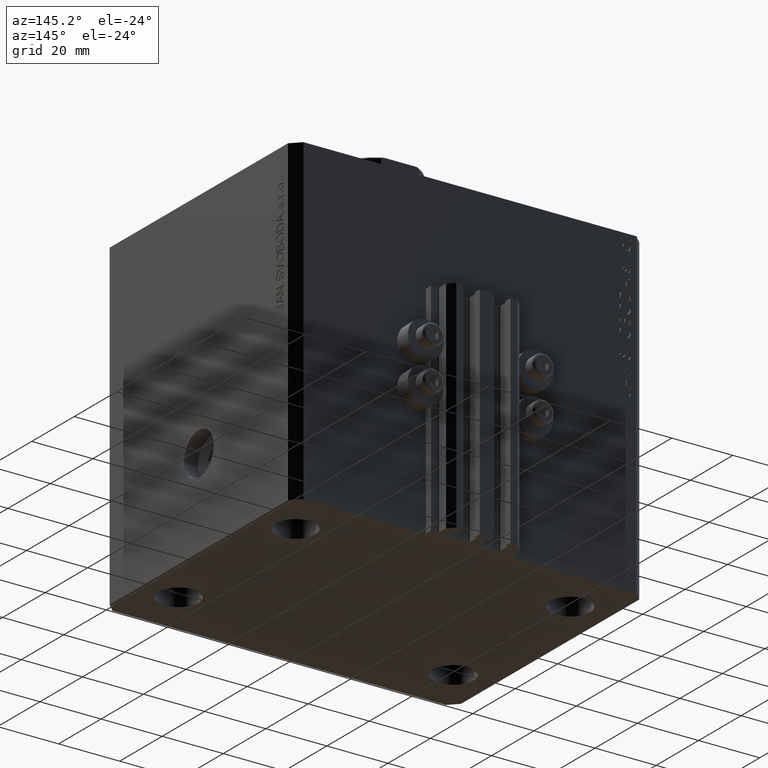
[diagram: clean part render]
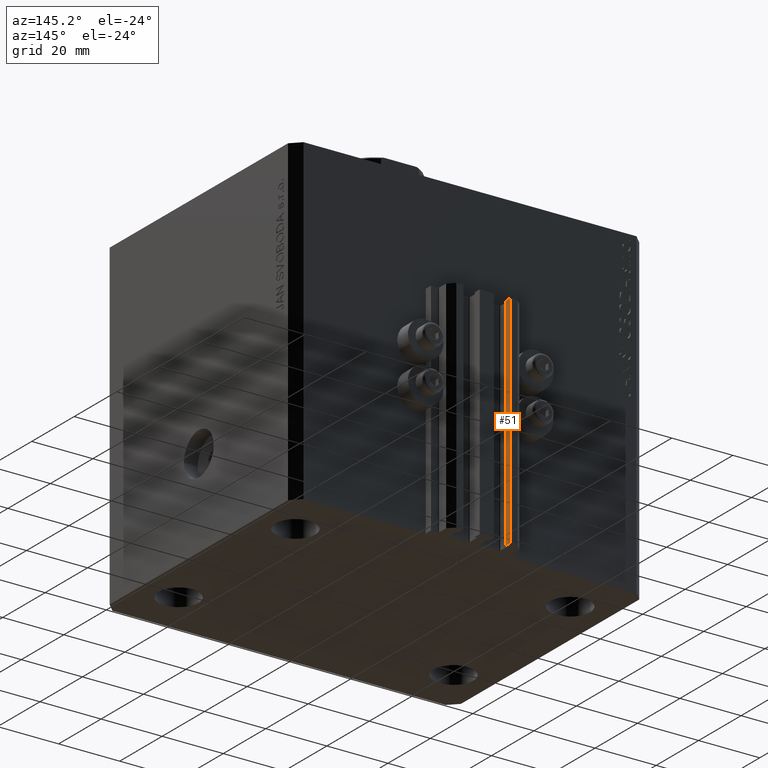
[diagram: same view with one face highlighted and labeled with its STEP entity id]
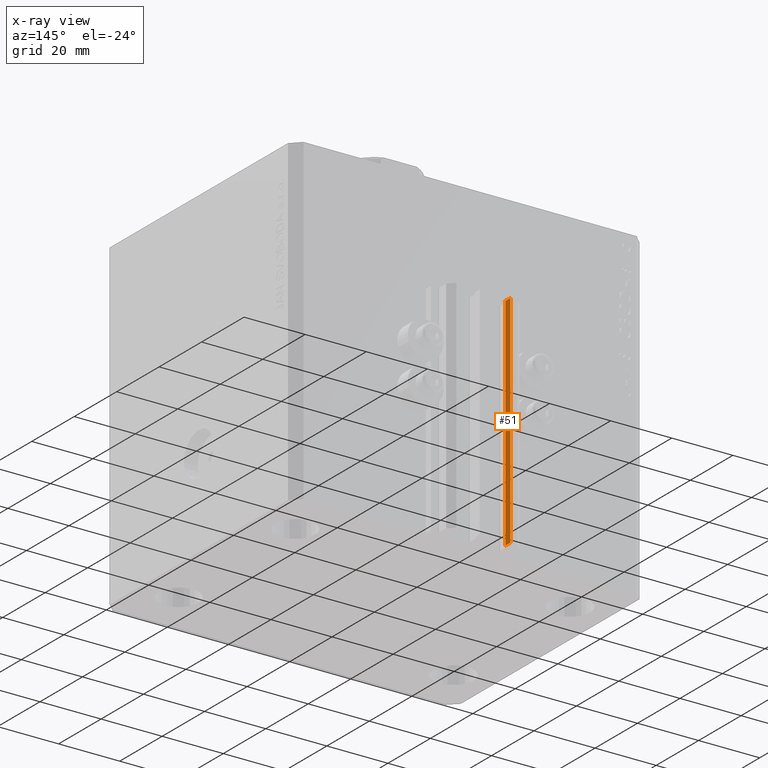
[diagram: x-ray of the same camera — body ghosted, the highlighted face saturated]
A machine part, auxiliary view. The second image highlights one B-rep face of the part: STEP entity #51.
The next image is the same camera in x-ray: the body ghosted, the highlighted face saturated — about 0% of this face is hidden behind the body in this view.
In plain terms, the highlighted planar face has unit normal (1, 0, 0).
Its self-contained STEP definition (entity closure, byte-faithful):
#51 = ADVANCED_FACE ( 'NONE', ( #9840 ), #17012, .T. ) ;
#1068 = DIRECTION ( 'NONE',  ( 0.000000000000000000, 0.000000000000000000, 1.000000000000000000 ) ) ;
#2388 = CARTESIAN_POINT ( 'NONE',  ( -7.650000000000002132, 52.99999999999999289, -33.00000000000000000 ) ) ;
#4395 = CARTESIAN_POINT ( 'NONE',  ( -7.650000000000002132, 52.99999999999999289, -105.0000000000000000 ) ) ;
#6248 = CARTESIAN_POINT ( 'NONE',  ( -7.650000000000002132, 52.99999999999999289, -105.0000000000000000 ) ) ;
#6756 = ORIENTED_EDGE ( 'NONE', *, *, #46221, .T. ) ;
#7955 = VERTEX_POINT ( 'NONE', #44768 ) ;
#8047 = EDGE_CURVE ( 'NONE', #12902, #14334, #35173, .T. ) ;
#8939 = CARTESIAN_POINT ( 'NONE',  ( -7.650000000000002132, 50.59999999999999432, -105.0000000000000000 ) ) ;
#9840 = FACE_OUTER_BOUND ( 'NONE', #14762, .T. ) ;
#9887 = VERTEX_POINT ( 'NONE', #6248 ) ;
#9969 = ORIENTED_EDGE ( 'NONE', *, *, #34355, .F. ) ;
#10066 = VECTOR ( 'NONE', #33970, 1000.000000000000000 ) ;
#10326 = CARTESIAN_POINT ( 'NONE',  ( -7.650000000000002132, 50.59999999999999432, -105.0000000000000000 ) ) ;
#12291 = DIRECTION ( 'NONE',  ( 0.000000000000000000, 1.000000000000000000, 0.000000000000000000 ) ) ;
#12411 = EDGE_CURVE ( 'NONE', #9887, #14334, #27050, .T. ) ;
#12902 = VERTEX_POINT ( 'NONE', #15737 ) ;
#13112 = VECTOR ( 'NONE', #1068, 1000.000000000000000 ) ;
#13324 = ORIENTED_EDGE ( 'NONE', *, *, #12411, .T. ) ;
#14192 = DIRECTION ( 'NONE',  ( 0.000000000000000000, 1.000000000000000000, 0.000000000000000000 ) ) ;
#14334 = VERTEX_POINT ( 'NONE', #2388 ) ;
#14386 = AXIS2_PLACEMENT_3D ( 'NONE', #10326, #20583, #24406 ) ;
#14762 = EDGE_LOOP ( 'NONE', ( #37516, #9969, #6756, #13324 ) ) ;
#15737 = CARTESIAN_POINT ( 'NONE',  ( -7.650000000000002132, 50.59999999999999432, -33.00000000000000000 ) ) ;
#15874 = LINE ( 'NONE', #30653, #13112 ) ;
#17012 = PLANE ( 'NONE',  #14386 ) ;
#20583 = DIRECTION ( 'NONE',  ( 1.000000000000000000, 0.000000000000000000, 0.000000000000000000 ) ) ;
#24009 = VECTOR ( 'NONE', #12291, 1000.000000000000000 ) ;
#24406 = DIRECTION ( 'NONE',  ( 0.000000000000000000, 0.000000000000000000, -1.000000000000000000 ) ) ;
#25958 = VECTOR ( 'NONE', #14192, 1000.000000000000000 ) ;
#27050 = LINE ( 'NONE', #4395, #10066 ) ;
#30653 = CARTESIAN_POINT ( 'NONE',  ( -7.650000000000002132, 50.59999999999999432, -105.0000000000000000 ) ) ;
#33970 = DIRECTION ( 'NONE',  ( 0.000000000000000000, 0.000000000000000000, 1.000000000000000000 ) ) ;
#34010 = LINE ( 'NONE', #8939, #24009 ) ;
#34355 = EDGE_CURVE ( 'NONE', #7955, #12902, #15874, .T. ) ;
#35173 = LINE ( 'NONE', #46886, #25958 ) ;
#37516 = ORIENTED_EDGE ( 'NONE', *, *, #8047, .F. ) ;
#44768 = CARTESIAN_POINT ( 'NONE',  ( -7.650000000000002132, 50.59999999999999432, -105.0000000000000000 ) ) ;
#46221 = EDGE_CURVE ( 'NONE', #7955, #9887, #34010, .T. ) ;
#46886 = CARTESIAN_POINT ( 'NONE',  ( -7.650000000000002132, 50.59999999999999432, -33.00000000000000000 ) ) ;